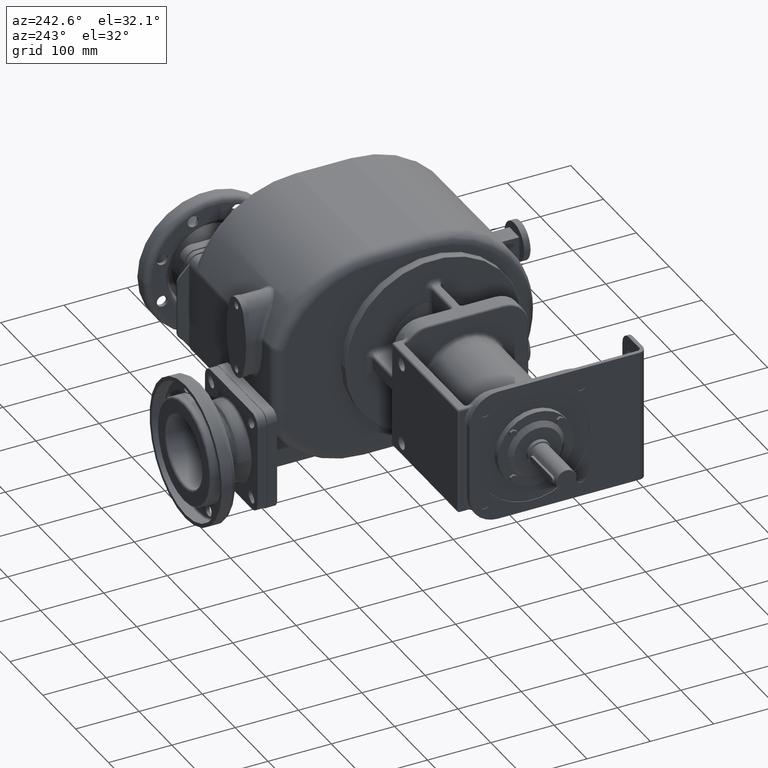
[diagram: clean part render]
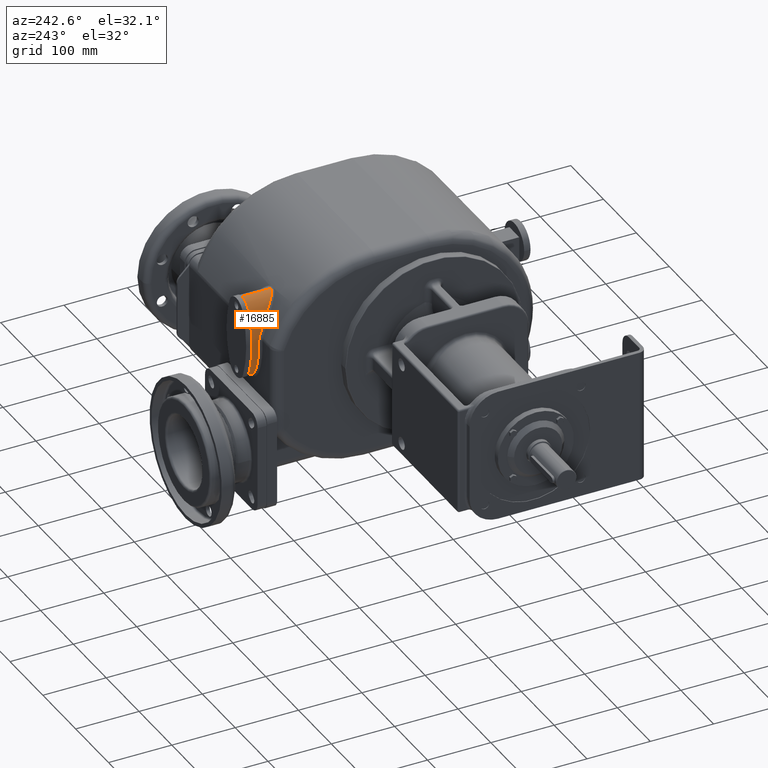
[diagram: same view with one face highlighted and labeled with its STEP entity id]
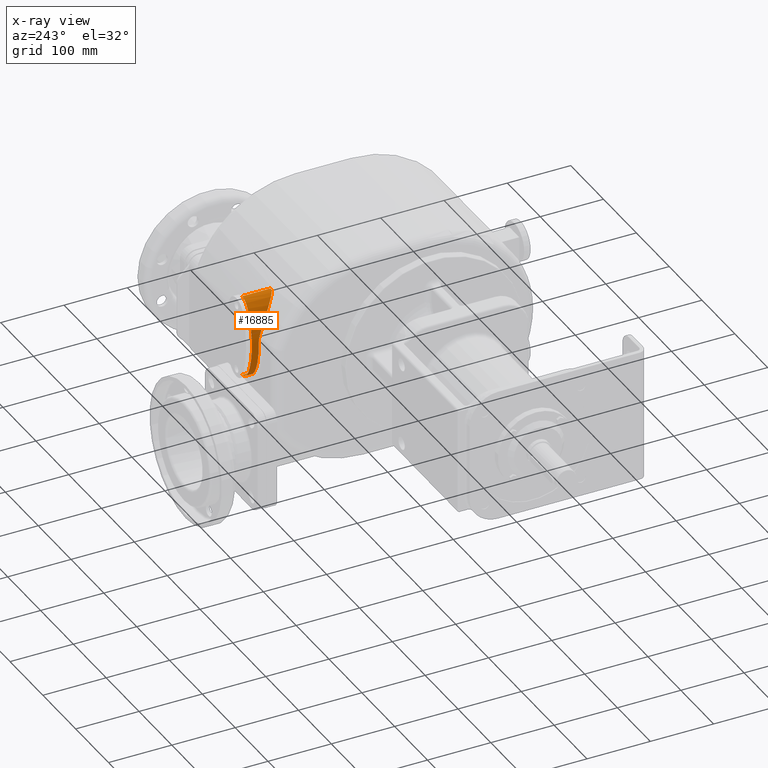
[diagram: x-ray of the same camera — body ghosted, the highlighted face saturated]
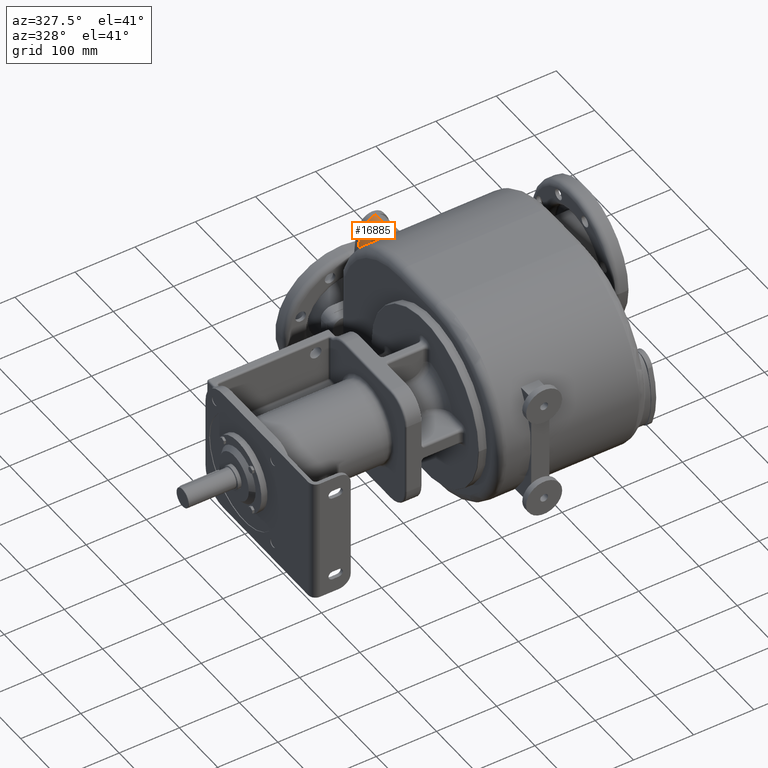
[diagram: same view with one face highlighted and labeled with its STEP entity id]
A machine part, auxiliary view. The second image highlights one B-rep face of the part: STEP entity #16885.
The next image is the same camera in x-ray: the body ghosted, the highlighted face saturated — about 0% of this face is hidden behind the body in this view.
A second angle (auxiliary view) of the same face is appended — the face is thin or edge-on in the first view.
In plain terms, the highlighted face is a SurfaceOfExtrusion surface.
Its self-contained STEP definition (entity closure, byte-faithful):
#2249=CARTESIAN_POINT('',(1.1E2,4.3E2,4.301E1));
#2250=DIRECTION('',(0.E0,1.E0,0.E0));
#2251=DIRECTION('',(-9.996320697048E-1,0.E0,2.712425515559E-2));
#2252=AXIS2_PLACEMENT_3D('',#2249,#2250,#2251);
#2254=CARTESIAN_POINT('',(-2.972010696726E1,4.3E2,5.185826022767E1));
#2255=CARTESIAN_POINT('',(-2.962610529930E1,4.3E2,5.333880551923E1));
#2256=CARTESIAN_POINT('',(-2.939236330477E1,4.3E2,5.626491649722E1));
#2257=CARTESIAN_POINT('',(-2.890923676127E1,4.3E2,6.055274042692E1));
#2258=CARTESIAN_POINT('',(-2.829626674128E1,4.3E2,6.474126381574E1));
#2259=CARTESIAN_POINT('',(-2.755429991748E1,4.3E2,6.883113417448E1));
#2260=CARTESIAN_POINT('',(-2.668241251037E1,4.3E2,7.282164502329E1));
#2261=CARTESIAN_POINT('',(-2.567785125408E1,4.3E2,7.671069074393E1));
#2262=CARTESIAN_POINT('',(-2.453582156767E1,4.3E2,8.049460457936E1));
#2263=CARTESIAN_POINT('',(-2.346361631192E1,4.3E2,8.355570059660E1));
#2264=CARTESIAN_POINT('',(-2.252839415507E1,4.3E2,8.594533980553E1));
#2265=CARTESIAN_POINT('',(-2.178656675142E1,4.3E2,8.770666421017E1));
#2266=CARTESIAN_POINT('',(-2.100241623003E1,4.3E2,8.943562111667E1));
#2267=CARTESIAN_POINT('',(-2.017366796586E1,4.3E2,9.113047095750E1));
#2268=CARTESIAN_POINT('',(-1.929763359183E1,4.3E2,9.278915774716E1));
#2269=CARTESIAN_POINT('',(-1.837111072935E1,4.3E2,9.440923239897E1));
#2270=CARTESIAN_POINT('',(-1.739025805459E1,4.3E2,9.598775717943E1));
#2271=CARTESIAN_POINT('',(-1.635042120168E1,4.3E2,9.752117256393E1));
#2272=CARTESIAN_POINT('',(-1.524589618662E1,4.3E2,9.900511631025E1));
#2273=CARTESIAN_POINT('',(-1.406957080339E1,4.3E2,1.004341492086E2));
#2274=CARTESIAN_POINT('',(-1.302198799576E1,4.3E2,1.015735319475E2));
#2275=CARTESIAN_POINT('',(-1.213762771028E1,4.3E2,1.024496337944E2));
#2276=CARTESIAN_POINT('',(-1.144934817981E1,4.3E2,1.030875837766E2));
#2277=CARTESIAN_POINT('',(-1.073395280271E1,4.3E2,1.037047963425E2));
#2278=CARTESIAN_POINT('',(-9.988942658996E0,4.3E2,1.042993603901E2));
#2279=CARTESIAN_POINT('',(-9.211345240688E0,4.3E2,1.048690026313E2));
#2280=CARTESIAN_POINT('',(-8.397570788748E0,4.3E2,1.054109777220E2));
#2281=CARTESIAN_POINT('',(-7.543218093810E0,4.3E2,1.059219197443E2));
#2282=CARTESIAN_POINT('',(-6.642793114385E0,4.3E2,1.063976270141E2));
#2283=CARTESIAN_POINT('',(-5.689278369080E0,4.3E2,1.068327327641E2));
#2284=CARTESIAN_POINT('',(-5.012090175161E0,4.3E2,1.070910563171E2));
#2285=CARTESIAN_POINT('',(-4.661031843369E0,4.3E2,1.072106858068E2));
#2287=CARTESIAN_POINT('',(-2.959127350150E1,4.180277563773E2,5.369300654447E1));
#2288=CARTESIAN_POINT('',(-2.953547731915E1,4.177794050641E2,5.441790817019E1));
#2289=CARTESIAN_POINT('',(-2.941250789738E1,4.172724683833E2,5.586383989972E1));
#2290=CARTESIAN_POINT('',(-2.919407153236E1,4.164821647968E2,5.801925154103E1));
#2291=CARTESIAN_POINT('',(-2.894191263813E1,4.156632165754E2,6.015799064301E1));
#2292=CARTESIAN_POINT('',(-2.865634146213E1,4.148169051282E2,6.227726614286E1));
#2293=CARTESIAN_POINT('',(-2.833773882775E1,4.139446090409E2,6.437419904726E1));
#2294=CARTESIAN_POINT('',(-2.798653758930E1,4.130479190375E2,6.644604693218E1));
#2295=CARTESIAN_POINT('',(-2.760318697061E1,4.121285224983E2,6.849031987056E1));
#2296=CARTESIAN_POINT('',(-2.718828013296E1,4.111884039467E2,7.050406057810E1));
#2297=CARTESIAN_POINT('',(-2.674289735316E1,4.102304926898E2,7.248264154252E1));
#2298=CARTESIAN_POINT('',(-2.626824763129E1,4.092577993437E2,7.442191021712E1));
#2299=CARTESIAN_POINT('',(-2.576535654304E1,4.082729788011E2,7.631915051693E1));
#2300=CARTESIAN_POINT('',(-2.523537641659E1,4.072787984379E2,7.817158770588E1));
#2301=CARTESIAN_POINT('',(-2.467956279720E1,4.062780634538E2,7.997655455188E1));
#2302=CARTESIAN_POINT('',(-2.409933340986E1,4.052737923284E2,8.173130897729E1));
#2303=CARTESIAN_POINT('',(-2.349652269954E1,4.042697900355E2,8.343243807606E1));
#2304=CARTESIAN_POINT('',(-2.287316109284E1,4.032698655736E2,8.507670507127E1));
#2305=CARTESIAN_POINT('',(-2.223156519487E1,4.022779152928E2,8.666086146402E1));
#2306=CARTESIAN_POINT('',(-2.157415864846E1,4.012978248948E2,8.818215672986E1));
#2307=CARTESIAN_POINT('',(-2.090342222491E1,4.003335122164E2,8.963838701122E1));
#2308=CARTESIAN_POINT('',(-2.022209026508E1,3.993888025004E2,9.102742554513E1));
#2309=CARTESIAN_POINT('',(-1.953340959060E1,3.984676577245E2,9.234686959138E1));
#2310=CARTESIAN_POINT('',(-1.883965760985E1,3.975726752964E2,9.359681714817E1));
#2311=CARTESIAN_POINT('',(-1.814258063415E1,3.967057622274E2,9.477846890317E1));
#2312=CARTESIAN_POINT('',(-1.744418444779E1,3.958687681379E2,9.589267497383E1));
#2313=CARTESIAN_POINT('',(-1.674647276695E1,3.950630834828E2,9.694044627662E1));
#2314=CARTESIAN_POINT('',(-1.605221929910E1,3.942912084144E2,9.792187148024E1));
#2315=CARTESIAN_POINT('',(-1.536484234584E1,3.935560943852E2,9.883666181759E1));
#2316=CARTESIAN_POINT('',(-1.468631678839E1,3.928585148535E2,9.968683948255E1));
#2317=CARTESIAN_POINT('',(-1.401862055296E1,3.921987872934E2,1.004744822760E2));
#2318=CARTESIAN_POINT('',(-1.336288926813E1,3.915765484495E2,1.012026722612E2));
#2319=CARTESIAN_POINT('',(-1.271993108675E1,3.909915056442E2,1.018746676156E2));
#2320=CARTESIAN_POINT('',(-1.209076685045E1,3.904431240749E2,1.024933368134E2));
#2321=CARTESIAN_POINT('',(-1.147647685030E1,3.899307316574E2,1.030613927547E2));
#2322=CARTESIAN_POINT('',(-1.087795355558E1,3.894531481219E2,1.035816390387E2));
#2323=CARTESIAN_POINT('',(-1.029551819477E1,3.890093463393E2,1.040572211045E2));
#2324=CARTESIAN_POINT('',(-9.729585948869E0,3.885983805573E2,1.044910146138E2));
#2325=CARTESIAN_POINT('',(-9.179903069087E0,3.882186063868E2,1.048862075701E2));
#2326=CARTESIAN_POINT('',(-8.645869005953E0,3.878681395808E2,1.052459503320E2));
#2327=CARTESIAN_POINT('',(-8.126656010431E0,3.875449625093E2,1.055732301116E2));
#2328=CARTESIAN_POINT('',(-7.622408111086E0,3.872477989221E2,1.058701847816E2));
#2329=CARTESIAN_POINT('',(-7.133324048029E0,3.869757490403E2,1.061388207522E2));
#2330=CARTESIAN_POINT('',(-6.659360035865E0,3.867276193994E2,1.063811772179E2));
#2331=CARTESIAN_POINT('',(-6.199312135897E0,3.865016564328E2,1.065996985310E2));
#2332=CARTESIAN_POINT('',(-5.751813612489E0,3.862961566022E2,1.067966239521E2));
#2333=CARTESIAN_POINT('',(-5.314991002102E0,3.861093649653E2,1.069741124538E2));
#2334=CARTESIAN_POINT('',(-4.888380802136E0,3.859402954536E2,1.071335002740E2));
#2335=CARTESIAN_POINT('',(-4.471940760248E0,3.857880651916E2,1.072758904942E2));
#2336=CARTESIAN_POINT('',(-4.065520460429E0,3.856518248275E2,1.074023683167E2));
#2337=CARTESIAN_POINT('',(-3.668590770231E0,3.855306623410E2,1.075140627771E2));
#2338=CARTESIAN_POINT('',(-3.280047006425E0,3.854236039345E2,1.076121367150E2));
#2339=CARTESIAN_POINT('',(-2.898702469705E0,3.853298022805E2,1.076976124634E2));
#2340=CARTESIAN_POINT('',(-2.523038362179E0,3.852484912524E2,1.077714128514E2));
#2341=CARTESIAN_POINT('',(-2.152171558388E0,3.851792098426E2,1.078341713163E2));
#2342=CARTESIAN_POINT('',(-1.785686472190E0,3.851216331612E2,1.078863585360E2));
#2343=CARTESIAN_POINT('',(-1.423091178117E0,3.850751666986E2,1.079283990381E2));
#2344=CARTESIAN_POINT('',(-1.063853330627E0,3.850394128378E2,1.079606618174E2));
#2345=CARTESIAN_POINT('',(-7.073402477227E-1,3.850139563523E2,
1.079834471729E2));
#2346=CARTESIAN_POINT('',(-3.529718520219E-1,3.849988726882E2,
1.079970199175E2));
#2347=CARTESIAN_POINT('',(-1.174863340934E-1,3.849949115535E2,
1.079999725309E2));
#2348=CARTESIAN_POINT('',(0.E0,3.849948209448E2,1.08E2));
#2350=CARTESIAN_POINT('',(-2.991598029119E1,4.189999999994E2,4.786161405910E1));
#2351=CARTESIAN_POINT('',(-2.990973077321E1,4.189999561263E2,4.804223551395E1));
#2352=CARTESIAN_POINT('',(-2.989652112312E1,4.189940599213E2,4.840302011867E1));
#2353=CARTESIAN_POINT('',(-2.987469619031E1,4.189697363214E2,4.894292556024E1));
#2354=CARTESIAN_POINT('',(-2.985084388433E1,4.189291419110E2,4.948111985827E1));
#2355=CARTESIAN_POINT('',(-2.982500634066E1,4.188725903222E2,5.001731603987E1));
#2356=CARTESIAN_POINT('',(-2.979721502010E1,4.188000636789E2,5.055119624389E1));
#2357=CARTESIAN_POINT('',(-2.976751084707E1,4.187116027509E2,5.108243487979E1));
#2358=CARTESIAN_POINT('',(-2.973593244029E1,4.186071774466E2,5.161079805599E1));
#2359=CARTESIAN_POINT('',(-2.970251270218E1,4.184868397560E2,5.213620450278E1));
#2360=CARTESIAN_POINT('',(-2.966728350822E1,4.183506229650E2,5.265854781615E1));
#2361=CARTESIAN_POINT('',(-2.963029153513E1,4.181984661024E2,5.317770967500E1));
#2362=CARTESIAN_POINT('',(-2.960445551251E1,4.180864676228E2,5.352162032648E1));
#2363=CARTESIAN_POINT('',(-2.959126423860E1,4.180277563774E2,5.369300583161E1));
#2365=CARTESIAN_POINT('',(0.E0,4.19E2,-2.2E1));
#2366=CARTESIAN_POINT('',(-5.142688421279E-1,4.19E2,-2.2E1));
#2367=CARTESIAN_POINT('',(-1.542806457136E0,4.19E2,-2.194268500738E1));
#2368=CARTESIAN_POINT('',(-3.081533536568E0,4.19E2,-2.168499486401E1));
#2369=CARTESIAN_POINT('',(-4.612112590105E0,4.19E2,-2.125626843543E1));
#2370=CARTESIAN_POINT('',(-6.130496568917E0,4.19E2,-2.065763933503E1));
#2371=CARTESIAN_POINT('',(-7.632670645709E0,4.19E2,-1.989069042290E1));
#2372=CARTESIAN_POINT('',(-9.114662860886E0,4.19E2,-1.895744962056E1));
#2373=CARTESIAN_POINT('',(-1.057255461683E1,4.19E2,-1.786038454883E1));
#2374=CARTESIAN_POINT('',(-1.200249104142E1,4.19E2,-1.660239600309E1));
#2375=CARTESIAN_POINT('',(-1.340069118024E1,4.19E2,-1.518681028318E1));
#2376=CARTESIAN_POINT('',(-1.476345799418E1,4.19E2,-1.361737039818E1));
#2377=CARTESIAN_POINT('',(-1.608718813481E1,4.19E2,-1.189822616936E1));
#2378=CARTESIAN_POINT('',(-1.736838147221E1,4.19E2,-1.003392325747E1));
#2379=CARTESIAN_POINT('',(-1.860365034981E1,4.19E2,-8.029391143378E0));
#2380=CARTESIAN_POINT('',(-1.978972854178E1,4.19E2,-5.889930093824E0));
#2381=CARTESIAN_POINT('',(-2.092347988944E1,4.19E2,-3.621197146747E0));
#2382=CARTESIAN_POINT('',(-2.200190659371E1,4.19E2,-1.229191153290E0));
#2383=CARTESIAN_POINT('',(-2.302215714168E1,4.19E2,1.279763084015E0));
#2384=CARTESIAN_POINT('',(-2.398153384644E1,4.19E2,3.899031534919E0));
#2385=CARTESIAN_POINT('',(-2.487749998016E1,4.19E2,6.621688482776E0));
#2386=CARTESIAN_POINT('',(-2.570768648151E1,4.19E2,9.440534837111E0));
#2387=CARTESIAN_POINT('',(-2.646989821983E1,4.19E2,1.234811716904E1));
#2388=CARTESIAN_POINT('',(-2.716211979937E1,4.19E2,1.533674741920E1));
#2389=CARTESIAN_POINT('',(-2.778252088826E1,4.19E2,1.839852322603E1));
#2390=CARTESIAN_POINT('',(-2.832946105818E1,4.19E2,2.152534882080E1));
#2391=CARTESIAN_POINT('',(-2.880149412188E1,4.19E2,2.470895643390E1));
#2392=CARTESIAN_POINT('',(-2.919737195709E1,4.19E2,2.794092815598E1));
#2393=CARTESIAN_POINT('',(-2.951604780677E1,4.19E2,3.121271819641E1));
#2394=CARTESIAN_POINT('',(-2.975667904688E1,4.19E2,3.451567547828E1));
#2395=CARTESIAN_POINT('',(-2.991862941424E1,4.19E2,3.784106651779E1));
#2396=CARTESIAN_POINT('',(-3.000147068953E1,4.19E2,4.118009849926E1));
#2397=CARTESIAN_POINT('',(-3.000498382728E1,4.19E2,4.452394259019E1));
#2398=CARTESIAN_POINT('',(-2.995443430477E1,4.19E2,4.675048555735E1));
#2399=CARTESIAN_POINT('',(-2.991597005168E1,4.19E2,4.786161370532E1));
#2401=DIRECTION('',(1.686121255921E-9,-9.999999999961E-1,2.806934322620E-6));
#2402=VECTOR('',#2401,1.100000000004E1);
#2403=CARTESIAN_POINT('',(0.E0,4.3E2,-2.2E1));
#2404=LINE('',#2403,#2402);
#2405=CARTESIAN_POINT('',(-4.819624215667E0,4.3E2,-2.115569962316E1));
#2406=CARTESIAN_POINT('',(-5.145149299329E0,4.3E2,-2.104089837882E1));
#2407=CARTESIAN_POINT('',(-5.775176774716E0,4.3E2,-2.079493213615E1));
#2408=CARTESIAN_POINT('',(-6.666835508452E0,4.3E2,-2.038443063596E1));
#2409=CARTESIAN_POINT('',(-7.512400992348E0,4.3E2,-1.993805082853E1));
#2410=CARTESIAN_POINT('',(-8.317556313287E0,4.3E2,-1.946021634505E1));
#2411=CARTESIAN_POINT('',(-9.086824850480E0,4.3E2,-1.895444811731E1));
#2412=CARTESIAN_POINT('',(-9.823879641386E0,4.3E2,-1.842360518361E1));
#2413=CARTESIAN_POINT('',(-1.053175130569E1,4.3E2,-1.787004653370E1));
#2414=CARTESIAN_POINT('',(-1.121297427225E1,4.3E2,-1.729574492971E1));
#2415=CARTESIAN_POINT('',(-1.186969748680E1,4.3E2,-1.670237307936E1));
#2416=CARTESIAN_POINT('',(-1.271509614093E1,4.3E2,-1.588767823599E1));
#2417=CARTESIAN_POINT('',(-1.371921670313E1,4.3E2,-1.482834501153E1));
#2418=CARTESIAN_POINT('',(-1.485034909451E1,4.3E2,-1.349969074732E1));
#2419=CARTESIAN_POINT('',(-1.591564634894E1,4.3E2,-1.211979138152E1));
#2420=CARTESIAN_POINT('',(-1.692148127309E1,4.3E2,-1.069360741306E1));
#2421=CARTESIAN_POINT('',(-1.787300256814E1,4.3E2,-9.225146515126E0));
#2422=CARTESIAN_POINT('',(-1.877443890991E1,4.3E2,-7.717700226761E0));
#2423=CARTESIAN_POINT('',(-1.962930185646E1,4.3E2,-6.174001893062E0));
#2424=CARTESIAN_POINT('',(-2.044053642380E1,4.3E2,-4.596343871139E0));
#2425=CARTESIAN_POINT('',(-2.121062999919E1,4.3E2,-2.986662306631E0));
#2426=CARTESIAN_POINT('',(-2.194170050158E1,4.3E2,-1.346605756477E0));
#2427=CARTESIAN_POINT('',(-2.286682206719E1,4.3E2,8.787746585058E-1));
#2428=CARTESIAN_POINT('',(-2.393411883876E1,4.3E2,3.729858342067E0));
#2429=CARTESIAN_POINT('',(-2.508218049558E1,4.3E2,7.254446183942E0));
#2430=CARTESIAN_POINT('',(-2.610461223710E1,4.3E2,1.087682250277E1));
#2431=CARTESIAN_POINT('',(-2.700640414228E1,4.3E2,1.459310309452E1));
#2432=CARTESIAN_POINT('',(-2.779077910967E1,4.3E2,1.840077930242E1));
#2433=CARTESIAN_POINT('',(-2.845941872274E1,4.3E2,2.229854220661E1));
#2434=CARTESIAN_POINT('',(-2.901256527507E1,4.3E2,2.628620320938E1));
#2435=CARTESIAN_POINT('',(-2.930354849091E1,4.3E2,2.900518758205E1));
#2436=CARTESIAN_POINT('',(-2.942914772399E1,4.3E2,3.038016370016E1));
#2438=CARTESIAN_POINT('',(1.1E2,4.3E2,4.301E1));
#2439=DIRECTION('',(0.E0,1.E0,0.E0));
#2440=DIRECTION('',(-9.999999993641E-1,0.E0,-3.566130100526E-5));
#2441=AXIS2_PLACEMENT_3D('',#2438,#2439,#2440);
#2686=CARTESIAN_POINT('',(0.E0,4.3E2,-2.2E1));
#2687=CARTESIAN_POINT('',(-4.136783282412E-1,4.3E2,-2.2E1));
#2688=CARTESIAN_POINT('',(-1.234692849782E0,4.3E2,-2.196294751324E1));
#2689=CARTESIAN_POINT('',(-2.447985222228E0,4.3E2,-2.180086758535E1));
#2690=CARTESIAN_POINT('',(-3.643705270441E0,4.3E2,-2.153612533366E1));
#2691=CARTESIAN_POINT('',(-4.429495725268E0,4.3E2,-2.129328421618E1));
#2692=CARTESIAN_POINT('',(-4.819624215666E0,4.3E2,-2.115569962316E1));
#2854=DIRECTION('',(-4.071510571500E-10,-9.999999999980E-1,-1.977666413448E-6));
#2855=VECTOR('',#2854,4.500517906140E1);
#2856=CARTESIAN_POINT('',(0.E0,4.3E2,1.08E2));
#2857=LINE('',#2856,#2855);
#2942=CARTESIAN_POINT('',(-4.661031843369E0,4.3E2,1.072106858068E2));
#2943=CARTESIAN_POINT('',(-4.283056259043E0,4.3E2,1.073394878382E2));
#2944=CARTESIAN_POINT('',(-3.522070931647E0,4.3E2,1.075667117642E2));
#2945=CARTESIAN_POINT('',(-2.365119199846E0,4.3E2,1.078141667362E2));
#2946=CARTESIAN_POINT('',(-1.192235095915E0,4.3E2,1.079654730429E2));
#2947=CARTESIAN_POINT('',(-3.993188020022E-1,4.3E2,1.08E2));
#2948=CARTESIAN_POINT('',(0.E0,4.3E2,1.08E2));
#6994=CARTESIAN_POINT('',(-2.942914772399E1,4.3E2,3.038016370010E1));
#6995=CARTESIAN_POINT('',(-2.952504950426E1,4.3E2,3.143003203389E1));
#6996=CARTESIAN_POINT('',(-2.969210077828E1,4.3E2,3.353089642915E1));
#6997=CARTESIAN_POINT('',(-2.987005456957E1,4.3E2,3.668550177103E1));
#6998=CARTESIAN_POINT('',(-2.997645106461E1,4.3E2,3.984336730239E1));
#6999=CARTESIAN_POINT('',(-3.000003739512E1,4.3E2,4.195076803881E1));
#7000=CARTESIAN_POINT('',(-2.999999991098E1,4.3E2,4.300500741786E1));
#12327=VERTEX_POINT('',#2287);
#12328=VERTEX_POINT('',#2348);
#12330=VERTEX_POINT('',#2350);
#12331=VERTEX_POINT('',#2365);
#12339=CARTESIAN_POINT('',(0.E0,4.3E2,1.08E2));
#12340=VERTEX_POINT('',#12339);
#12348=CARTESIAN_POINT('',(0.E0,4.3E2,-2.2E1));
#12349=VERTEX_POINT('',#12348);
#12705=CARTESIAN_POINT('',(-4.819624215666E0,4.3E2,-2.115569962316E1));
#12707=VERTEX_POINT('',#12705);
#12708=CARTESIAN_POINT('',(-2.994848975867E1,4.3E2,4.680739572178E1));
#12709=CARTESIAN_POINT('',(-2.972010696727E1,4.3E2,5.185826022763E1));
#12710=VERTEX_POINT('',#12708);
#12711=VERTEX_POINT('',#12709);
#12712=CARTESIAN_POINT('',(-4.661031843369E0,4.3E2,1.072106858068E2));
#12714=VERTEX_POINT('',#12712);
#12728=VERTEX_POINT('',#2436);
#12733=VERTEX_POINT('',#7000);
#16854=CARTESIAN_POINT('',(0.E0,4.3E2,4.3E1));
#16855=DIRECTION('',(0.E0,1.E0,0.E0));
#16856=DIRECTION('',(0.E0,0.E0,-1.E0));
#16857=AXIS2_PLACEMENT_3D('',#16854,#16855,#16856);
#16859=DIRECTION('',(0.E0,1.E0,0.E0));
#16860=VECTOR('',#16859,1.E0);
#16861=SURFACE_OF_LINEAR_EXTRUSION('',#16858,#16860);
#16863=ORIENTED_EDGE('',*,*,#16862,.T.);
#16865=ORIENTED_EDGE('',*,*,#16864,.T.);
#16867=ORIENTED_EDGE('',*,*,#16866,.T.);
#16869=ORIENTED_EDGE('',*,*,#16868,.T.);
#16870=ORIENTED_EDGE('',*,*,#16686,.F.);
#16871=ORIENTED_EDGE('',*,*,#16718,.F.);
#16872=ORIENTED_EDGE('',*,*,#16845,.F.);
#16874=ORIENTED_EDGE('',*,*,#16873,.F.);
#16876=ORIENTED_EDGE('',*,*,#16875,.T.);
#16878=ORIENTED_EDGE('',*,*,#16877,.T.);
#16880=ORIENTED_EDGE('',*,*,#16879,.T.);
#16882=ORIENTED_EDGE('',*,*,#16881,.T.);
#16883=EDGE_LOOP('',(#16863,#16865,#16867,#16869,#16870,#16871,#16872,#16874,
#16876,#16878,#16880,#16882));
#16884=FACE_OUTER_BOUND('',#16883,.F.);
#16885=ADVANCED_FACE('',(#16884),#16861,.T.);
#2253=CIRCLE('',#2252,1.4E2);
#2286=B_SPLINE_CURVE_WITH_KNOTS('',3,(#2254,#2255,#2256,#2257,#2258,#2259,#2260,
#2261,#2262,#2263,#2264,#2265,#2266,#2267,#2268,#2269,#2270,#2271,#2272,#2273,
#2274,#2275,#2276,#2277,#2278,#2279,#2280,#2281,#2282,#2283,#2284,#2285),
.UNSPECIFIED.,.F.,.F.,(4,1,1,1,1,1,1,1,1,1,1,1,1,1,1,1,1,1,1,1,1,1,1,1,1,1,1,1,
1,4),(0.E0,6.25E-2,1.25E-1,1.875E-1,2.5E-1,3.125E-1,3.75E-1,4.375E-1,5.E-1,
5.3125E-1,5.625E-1,5.9375E-1,6.25E-1,6.5625E-1,6.875E-1,7.1875E-1,7.5E-1,
7.8125E-1,8.125E-1,8.4375E-1,8.59375E-1,8.75E-1,8.90625E-1,9.0625E-1,9.21875E-1,
9.375E-1,9.53125E-1,9.6875E-1,9.84375E-1,1.E0),.UNSPECIFIED.);
#2349=B_SPLINE_CURVE_WITH_KNOTS('',3,(#2287,#2288,#2289,#2290,#2291,#2292,#2293,
#2294,#2295,#2296,#2297,#2298,#2299,#2300,#2301,#2302,#2303,#2304,#2305,#2306,
#2307,#2308,#2309,#2310,#2311,#2312,#2313,#2314,#2315,#2316,#2317,#2318,#2319,
#2320,#2321,#2322,#2323,#2324,#2325,#2326,#2327,#2328,#2329,#2330,#2331,#2332,
#2333,#2334,#2335,#2336,#2337,#2338,#2339,#2340,#2341,#2342,#2343,#2344,#2345,
#2346,#2347,#2348),.UNSPECIFIED.,.F.,.F.,(4,1,1,1,1,1,1,1,1,1,1,1,1,1,1,1,1,1,1,
1,1,1,1,1,1,1,1,1,1,1,1,1,1,1,1,1,1,1,1,1,1,1,1,1,1,1,1,1,1,1,1,1,1,1,1,1,1,1,1,
4),(0.E0,1.694915254237E-2,3.389830508475E-2,5.084745762712E-2,
6.779661016949E-2,8.474576271186E-2,1.016949152542E-1,1.186440677966E-1,
1.355932203390E-1,1.525423728814E-1,1.694915254237E-1,1.864406779661E-1,
2.033898305085E-1,2.203389830508E-1,2.372881355932E-1,2.542372881356E-1,
2.711864406780E-1,2.881355932203E-1,3.050847457627E-1,3.220338983051E-1,
3.389830508475E-1,3.559322033898E-1,3.728813559322E-1,3.898305084746E-1,
4.067796610169E-1,4.237288135593E-1,4.406779661017E-1,4.576271186441E-1,
4.745762711864E-1,4.915254237288E-1,5.084745762712E-1,5.254237288136E-1,
5.423728813559E-1,5.593220338983E-1,5.762711864407E-1,5.932203389831E-1,
6.101694915254E-1,6.271186440678E-1,6.440677966102E-1,6.610169491525E-1,
6.779661016949E-1,6.949152542373E-1,7.118644067797E-1,7.288135593220E-1,
7.457627118644E-1,7.627118644068E-1,7.796610169492E-1,7.966101694915E-1,
8.135593220339E-1,8.305084745763E-1,8.474576271186E-1,8.644067796610E-1,
8.813559322034E-1,8.983050847458E-1,9.152542372881E-1,9.322033898305E-1,
9.491525423729E-1,9.661016949153E-1,9.830508474576E-1,1.E0),.UNSPECIFIED.);
#2364=B_SPLINE_CURVE_WITH_KNOTS('',3,(#2350,#2351,#2352,#2353,#2354,#2355,#2356,
#2357,#2358,#2359,#2360,#2361,#2362,#2363),.UNSPECIFIED.,.F.,.F.,(4,1,1,1,1,1,1,
1,1,1,1,4),(0.E0,9.090909090909E-2,1.818181818182E-1,2.727272727273E-1,
3.636363636364E-1,4.545454545455E-1,5.454545454545E-1,6.363636363636E-1,
7.272727272727E-1,8.181818181818E-1,9.090909090909E-1,1.E0),.UNSPECIFIED.);
#2400=B_SPLINE_CURVE_WITH_KNOTS('',3,(#2365,#2366,#2367,#2368,#2369,#2370,#2371,
#2372,#2373,#2374,#2375,#2376,#2377,#2378,#2379,#2380,#2381,#2382,#2383,#2384,
#2385,#2386,#2387,#2388,#2389,#2390,#2391,#2392,#2393,#2394,#2395,#2396,#2397,
#2398,#2399),.UNSPECIFIED.,.F.,.F.,(4,1,1,1,1,1,1,1,1,1,1,1,1,1,1,1,1,1,1,1,1,1,
1,1,1,1,1,1,1,1,1,1,4),(0.E0,3.125E-2,6.25E-2,9.375E-2,1.25E-1,1.5625E-1,
1.875E-1,2.1875E-1,2.5E-1,2.8125E-1,3.125E-1,3.4375E-1,3.75E-1,4.0625E-1,
4.375E-1,4.6875E-1,5.E-1,5.3125E-1,5.625E-1,5.9375E-1,6.25E-1,6.5625E-1,
6.875E-1,7.1875E-1,7.5E-1,7.8125E-1,8.125E-1,8.4375E-1,8.75E-1,9.0625E-1,
9.375E-1,9.6875E-1,1.E0),.UNSPECIFIED.);
#2437=B_SPLINE_CURVE_WITH_KNOTS('',3,(#2405,#2406,#2407,#2408,#2409,#2410,#2411,
#2412,#2413,#2414,#2415,#2416,#2417,#2418,#2419,#2420,#2421,#2422,#2423,#2424,
#2425,#2426,#2427,#2428,#2429,#2430,#2431,#2432,#2433,#2434,#2435,#2436),
.UNSPECIFIED.,.F.,.F.,(4,1,1,1,1,1,1,1,1,1,1,1,1,1,1,1,1,1,1,1,1,1,1,1,1,1,1,1,
1,4),(0.E0,1.5625E-2,3.125E-2,4.6875E-2,6.25E-2,7.8125E-2,9.375E-2,1.09375E-1,
1.25E-1,1.40625E-1,1.5625E-1,1.875E-1,2.1875E-1,2.5E-1,2.8125E-1,3.125E-1,
3.4375E-1,3.75E-1,4.0625E-1,4.375E-1,4.6875E-1,5.E-1,5.625E-1,6.25E-1,6.875E-1,
7.5E-1,8.125E-1,8.75E-1,9.375E-1,1.E0),.UNSPECIFIED.);
#2442=CIRCLE('',#2441,1.4E2);
#2693=B_SPLINE_CURVE_WITH_KNOTS('',3,(#2686,#2687,#2688,#2689,#2690,#2691,
#2692),.UNSPECIFIED.,.F.,.F.,(4,1,1,1,4),(0.E0,2.5E-1,5.E-1,7.5E-1,1.E0),
.UNSPECIFIED.);
#2949=B_SPLINE_CURVE_WITH_KNOTS('',3,(#2942,#2943,#2944,#2945,#2946,#2947,
#2948),.UNSPECIFIED.,.F.,.F.,(4,1,1,1,4),(0.E0,2.5E-1,5.E-1,7.5E-1,1.E0),
.UNSPECIFIED.);
#7001=B_SPLINE_CURVE_WITH_KNOTS('',3,(#6994,#6995,#6996,#6997,#6998,#6999,
#7000),.UNSPECIFIED.,.F.,.F.,(4,1,1,1,4),(0.E0,2.5E-1,5.E-1,7.5E-1,1.E0),
.UNSPECIFIED.);
#16686=EDGE_CURVE('',#12327,#12328,#2349,.T.);
#16718=EDGE_CURVE('',#12330,#12327,#2364,.T.);
#16845=EDGE_CURVE('',#12331,#12330,#2400,.T.);
#16858=ELLIPSE('',#16857,6.5E1,3.E1);
#16862=EDGE_CURVE('',#12710,#12711,#2253,.T.);
#16864=EDGE_CURVE('',#12711,#12714,#2286,.T.);
#16866=EDGE_CURVE('',#12714,#12340,#2949,.T.);
#16868=EDGE_CURVE('',#12340,#12328,#2857,.T.);
#16873=EDGE_CURVE('',#12349,#12331,#2404,.T.);
#16875=EDGE_CURVE('',#12349,#12707,#2693,.T.);
#16877=EDGE_CURVE('',#12707,#12728,#2437,.T.);
#16879=EDGE_CURVE('',#12728,#12733,#7001,.T.);
#16881=EDGE_CURVE('',#12733,#12710,#2442,.T.);